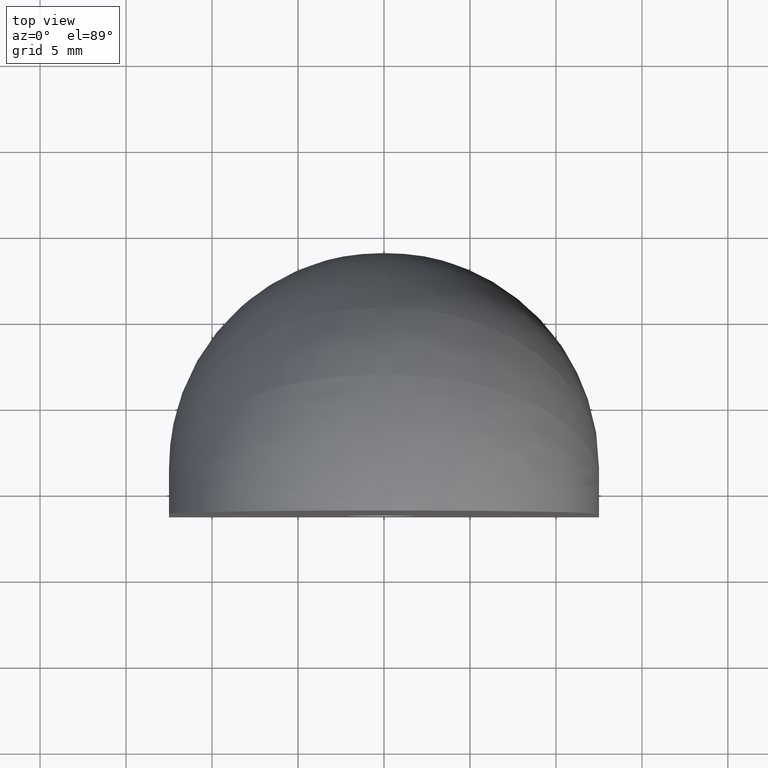
[diagram: clean part render]
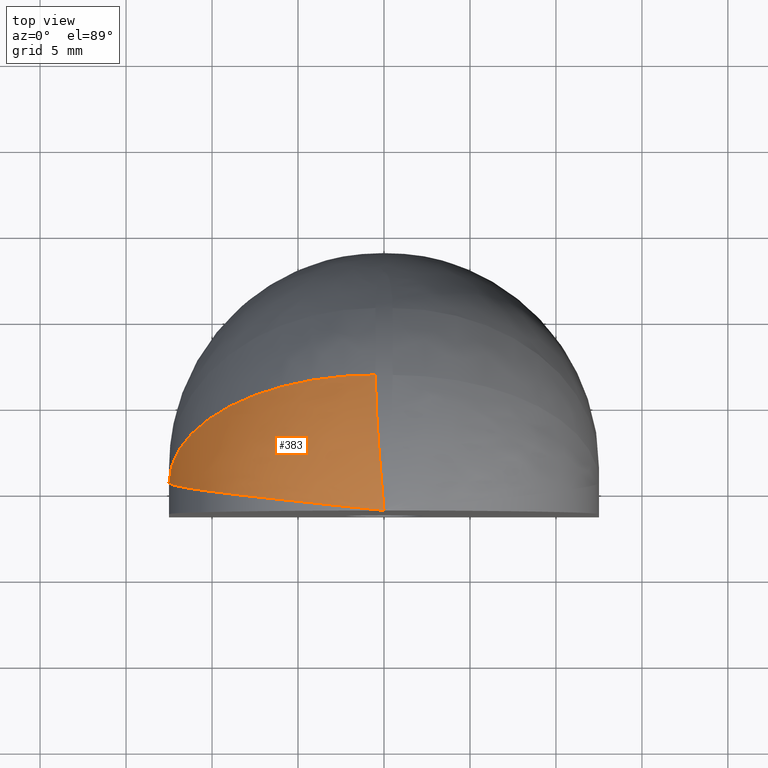
[diagram: same view with one face highlighted and labeled with its STEP entity id]
A machine part, top view. The second image highlights one B-rep face of the part: STEP entity #383.
In plain terms, the highlighted face is a freeform B-spline surface patch.
Its self-contained STEP definition (entity closure, byte-faithful):
#82=FACE_OUTER_BOUND('',#107,.T.);
#107=EDGE_LOOP('',(#313,#314,#315));
#133=B_SPLINE_CURVE_WITH_KNOTS('',3,(#950,#951,#952,#953,#954,#955,#956,
#957,#958,#959),.UNSPECIFIED.,.F.,.F.,(4,1,1,1,1,2,4),(-0.197753694802122,
-0.158202955841698,-0.118652216881273,-0.0791014779208488,-0.0395507389604244,
0.,0.000887132620600023),.UNSPECIFIED.);
#134=B_SPLINE_CURVE_WITH_KNOTS('',3,(#960,#961,#962,#963,#964,#965,#966,
#967,#968,#969),.UNSPECIFIED.,.F.,.F.,(4,2,1,1,1,1,4),(-0.000887132620600023,
0.,0.0395507389604244,0.0791014779208488,0.118652216881273,0.158202955841698,
0.197753694802122),.UNSPECIFIED.);
#150=CIRCLE('',#437,12.);
#184=VERTEX_POINT('',#946);
#185=VERTEX_POINT('',#947);
#186=VERTEX_POINT('',#949);
#230=EDGE_CURVE('',#184,#185,#150,.T.);
#231=EDGE_CURVE('',#185,#186,#133,.T.);
#232=EDGE_CURVE('',#186,#184,#134,.T.);
#313=ORIENTED_EDGE('',*,*,#230,.T.);
#314=ORIENTED_EDGE('',*,*,#231,.T.);
#315=ORIENTED_EDGE('',*,*,#232,.T.);
#368=B_SPLINE_SURFACE_WITH_KNOTS('',3,3,((#886,#887,#888,#889,#890,#891,
#892,#893,#894,#895),(#896,#897,#898,#899,#900,#901,#902,#903,#904,#905),
(#906,#907,#908,#909,#910,#911,#912,#913,#914,#915),(#916,#917,#918,#919,
#920,#921,#922,#923,#924,#925),(#926,#927,#928,#929,#930,#931,#932,#933,
#934,#935),(#936,#937,#938,#939,#940,#941,#942,#943,#944,#945)),
 .UNSPECIFIED.,.F.,.F.,.F.,(4,1,1,4),(4,2,1,1,1,1,4),(0.,0.285714285714286,
0.571428571428571,1.),(-0.000887132620600023,0.,0.0395507389604244,0.0791014779208488,
0.118652216881273,0.158202955841698,0.197753694802122),.UNSPECIFIED.);
#383=ADVANCED_FACE('',(#82),#368,.F.);
#437=AXIS2_PLACEMENT_3D('',#948,#510,#511);
#510=DIRECTION('center_axis',(-1.55749888852909E-16,-0.861777150916785,
0.507287041188466));
#511=DIRECTION('ref_axis',(2.31296463463574E-17,0.507287041188467,0.861777150916785));
#886=CARTESIAN_POINT('Ctrl Pts',(0.,-1.375,15.35));
#887=CARTESIAN_POINT('Ctrl Pts',(-0.00103048948506375,-1.36303340097962,
15.35));
#888=CARTESIAN_POINT('Ctrl Pts',(-0.00206097577488444,-1.35106662748317,
15.3499861556011));
#889=CARTESIAN_POINT('Ctrl Pts',(-0.0490330227874523,-0.805609228795032,
15.3487382925026));
#890=CARTESIAN_POINT('Ctrl Pts',(-0.141525150701456,0.269025602362929,15.2914037910087));
#891=CARTESIAN_POINT('Ctrl Pts',(-0.273185976869189,1.88190594022633,15.0360597138394));
#892=CARTESIAN_POINT('Ctrl Pts',(-0.387695138126981,3.47620041226764,14.607922737014));
#893=CARTESIAN_POINT('Ctrl Pts',(-0.473408487649287,5.03427696365655,14.0078104166426));
#894=CARTESIAN_POINT('Ctrl Pts',(-0.499999999999999,6.05588666134229,13.4807019835385));
#895=CARTESIAN_POINT('Ctrl Pts',(-0.499999999999999,6.54747771978519,13.1913258110014));
#896=CARTESIAN_POINT('Ctrl Pts',(-1.45027937794825E-16,-1.375,15.35));
#897=CARTESIAN_POINT('Ctrl Pts',(-0.00338557987149166,-1.36391001493667,
15.3500007418658));
#898=CARTESIAN_POINT('Ctrl Pts',(-0.00677215043939381,-1.35281697235308,
15.3499874454336));
#899=CARTESIAN_POINT('Ctrl Pts',(-0.161099407127379,-0.847307001329406,
15.348929444411));
#900=CARTESIAN_POINT('Ctrl Pts',(-0.465216359883365,0.148883445226285,15.3001198806039));
#901=CARTESIAN_POINT('Ctrl Pts',(-0.926827197534924,1.66535727021986,15.0791927751364));
#902=CARTESIAN_POINT('Ctrl Pts',(-1.39277396545209,3.21220400280005,14.6930145593685));
#903=CARTESIAN_POINT('Ctrl Pts',(-1.85879195066293,4.80667890565366,14.1136249027117));
#904=CARTESIAN_POINT('Ctrl Pts',(-2.16240871445006,5.95102320262701,13.5419610306529));
#905=CARTESIAN_POINT('Ctrl Pts',(-2.29519580205131,6.54747771978519,13.1913258110014));
#906=CARTESIAN_POINT('Ctrl Pts',(-4.35083813384476E-16,-1.375,15.35));
#907=CARTESIAN_POINT('Ctrl Pts',(-0.00809576517319602,-1.36566166464527,
15.3499995656747));
#908=CARTESIAN_POINT('Ctrl Pts',(-0.0161944728894455,-1.35631940603987,
15.3499879887916));
#909=CARTESIAN_POINT('Ctrl Pts',(-0.385237542752456,-0.930656593581436,
15.3488218812721));
#910=CARTESIAN_POINT('Ctrl Pts',(-1.11267430316543,-0.091560866162683,15.2974658030607));
#911=CARTESIAN_POINT('Ctrl Pts',(-2.23405178548434,1.21377063358989,15.0576962735838));
#912=CARTESIAN_POINT('Ctrl Pts',(-3.40292328045405,2.60916538549884,14.6113910817323));
#913=CARTESIAN_POINT('Ctrl Pts',(-4.62789067513683,4.16067226179245,13.8760430816953));
#914=CARTESIAN_POINT('Ctrl Pts',(-5.48512846726689,5.41287566628636,13.0488443951832));
#915=CARTESIAN_POINT('Ctrl Pts',(-5.88015615055437,6.13131626398416,12.4843524318641));
#916=CARTESIAN_POINT('Ctrl Pts',(-9.42681595666365E-16,-1.375,15.35));
#917=CARTESIAN_POINT('Ctrl Pts',(-0.0163404148124365,-1.36872600861468,
15.3500016619177));
#918=CARTESIAN_POINT('Ctrl Pts',(-0.0326815231809797,-1.36245000341071,
15.3499675051088));
#919=CARTESIAN_POINT('Ctrl Pts',(-0.777521698631659,-1.07647321290637,15.3472800379353));
#920=CARTESIAN_POINT('Ctrl Pts',(-2.24533064446664,-0.512706417816308,15.2219387261352));
#921=CARTESIAN_POINT('Ctrl Pts',(-4.47151464465801,0.37661232226497,14.6443797098518));
#922=CARTESIAN_POINT('Ctrl Pts',(-6.71250510896775,1.35606784154435,13.5967586434106));
#923=CARTESIAN_POINT('Ctrl Pts',(-8.93000902262785,2.49908880579746,11.9358560565846));
#924=CARTESIAN_POINT('Ctrl Pts',(-10.3400086948346,3.49086313977693,10.1717794897016));
#925=CARTESIAN_POINT('Ctrl Pts',(-10.9291671654499,4.09495771198636,9.02499485183531));
#926=CARTESIAN_POINT('Ctrl Pts',(-1.30525144015343E-15,-1.375,15.35));
#927=CARTESIAN_POINT('Ctrl Pts',(-0.0222280538568647,-1.37091604041004,
15.350000451145));
#928=CARTESIAN_POINT('Ctrl Pts',(-0.0444593128631368,-1.36682778828841,
15.3499419179216));
#929=CARTESIAN_POINT('Ctrl Pts',(-1.05769932257023,-1.18066243353229,15.3446100522111));
#930=CARTESIAN_POINT('Ctrl Pts',(-3.05342411192181,-0.813577114519263,15.1044459169767));
#931=CARTESIAN_POINT('Ctrl Pts',(-5.98005396969176,-0.246706542842197,14.0191436244094));
#932=CARTESIAN_POINT('Ctrl Pts',(-8.70852795230277,0.351618870810719,12.1386808019462));
#933=CARTESIAN_POINT('Ctrl Pts',(-11.0646069448446,1.00611307939544,9.3646253218682));
#934=CARTESIAN_POINT('Ctrl Pts',(-12.1868484352549,1.52768596663108,6.72434896815634));
#935=CARTESIAN_POINT('Ctrl Pts',(-12.5,1.82605257568842,5.1705880854443));
#936=CARTESIAN_POINT('Ctrl Pts',(-1.52279334684567E-15,-1.375,15.35));
#937=CARTESIAN_POINT('Ctrl Pts',(-0.0257622371265955,-1.37222825262808,
15.35));
#938=CARTESIAN_POINT('Ctrl Pts',(-0.051524394373787,-1.36945646483887,15.3499198327439));
#939=CARTESIAN_POINT('Ctrl Pts',(-1.22582556965713,-1.24311563000848,15.3426939675301));
#940=CARTESIAN_POINT('Ctrl Pts',(-3.53812876753463,-0.994204785344501,15.0106933014146));
#941=CARTESIAN_POINT('Ctrl Pts',(-6.82964942171739,-0.620623550630975,13.5321001070905));
#942=CARTESIAN_POINT('Ctrl Pts',(-9.69237845317282,-0.251347241985281,11.0529338495828));
#943=CARTESIAN_POINT('Ctrl Pts',(-11.8352121912289,0.109540139564015,7.57792866219873));
#944=CARTESIAN_POINT('Ctrl Pts',(-12.5,0.346169109079264,4.52565915002274));
#945=CARTESIAN_POINT('Ctrl Pts',(-12.5,0.460033225523567,2.84999999999997));
#946=CARTESIAN_POINT('',(-0.499999999999999,6.54747771978518,13.1913258110014));
#947=CARTESIAN_POINT('',(-12.5,0.460033225523582,2.84999999999999));
#948=CARTESIAN_POINT('Origin',(-0.499999999999999,0.460033225523582,2.85));
#949=CARTESIAN_POINT('',(0.,-1.37500000000001,15.35));
#950=CARTESIAN_POINT('Ctrl Pts',(-12.5,0.460033225523567,2.84999999999997));
#951=CARTESIAN_POINT('Ctrl Pts',(-12.5,0.346169109079264,4.52565915002274));
#952=CARTESIAN_POINT('Ctrl Pts',(-11.8352121912289,0.109540139564015,7.57792866219873));
#953=CARTESIAN_POINT('Ctrl Pts',(-9.69237845317282,-0.251347241985281,11.0529338495828));
#954=CARTESIAN_POINT('Ctrl Pts',(-6.82964942171739,-0.620623550630975,13.5321001070905));
#955=CARTESIAN_POINT('Ctrl Pts',(-3.53812876753463,-0.994204785344501,15.0106933014146));
#956=CARTESIAN_POINT('Ctrl Pts',(-1.22582556965713,-1.24311563000848,15.3426939675301));
#957=CARTESIAN_POINT('Ctrl Pts',(-0.051524394373787,-1.36945646483887,15.3499198327439));
#958=CARTESIAN_POINT('Ctrl Pts',(-0.0257622371265955,-1.37222825262808,
15.35));
#959=CARTESIAN_POINT('Ctrl Pts',(-1.52279334684567E-15,-1.375,15.35));
#960=CARTESIAN_POINT('Ctrl Pts',(0.,-1.375,15.35));
#961=CARTESIAN_POINT('Ctrl Pts',(-0.00103048948506375,-1.36303340097962,
15.35));
#962=CARTESIAN_POINT('Ctrl Pts',(-0.00206097577488444,-1.35106662748317,
15.3499861556011));
#963=CARTESIAN_POINT('Ctrl Pts',(-0.0490330227874523,-0.805609228795032,
15.3487382925026));
#964=CARTESIAN_POINT('Ctrl Pts',(-0.141525150701456,0.269025602362929,15.2914037910087));
#965=CARTESIAN_POINT('Ctrl Pts',(-0.273185976869189,1.88190594022633,15.0360597138394));
#966=CARTESIAN_POINT('Ctrl Pts',(-0.387695138126981,3.47620041226764,14.607922737014));
#967=CARTESIAN_POINT('Ctrl Pts',(-0.473408487649287,5.03427696365655,14.0078104166426));
#968=CARTESIAN_POINT('Ctrl Pts',(-0.499999999999999,6.05588666134229,13.4807019835385));
#969=CARTESIAN_POINT('Ctrl Pts',(-0.499999999999999,6.54747771978519,13.1913258110014));